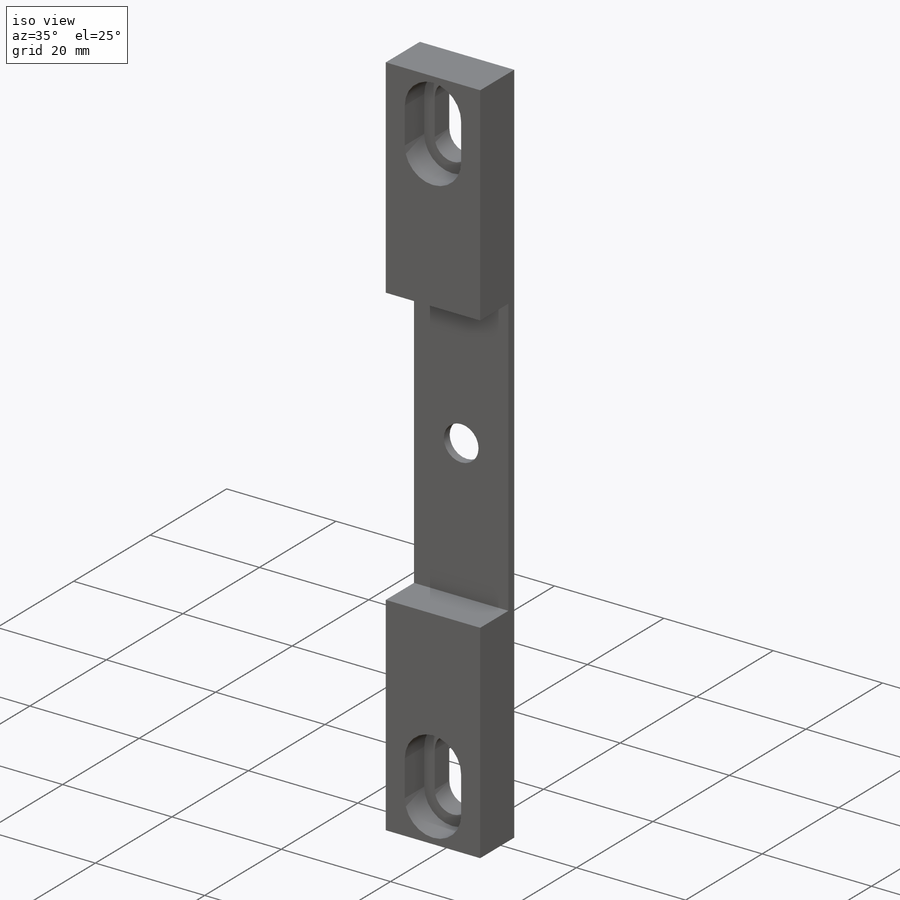
[diagram: iso view]
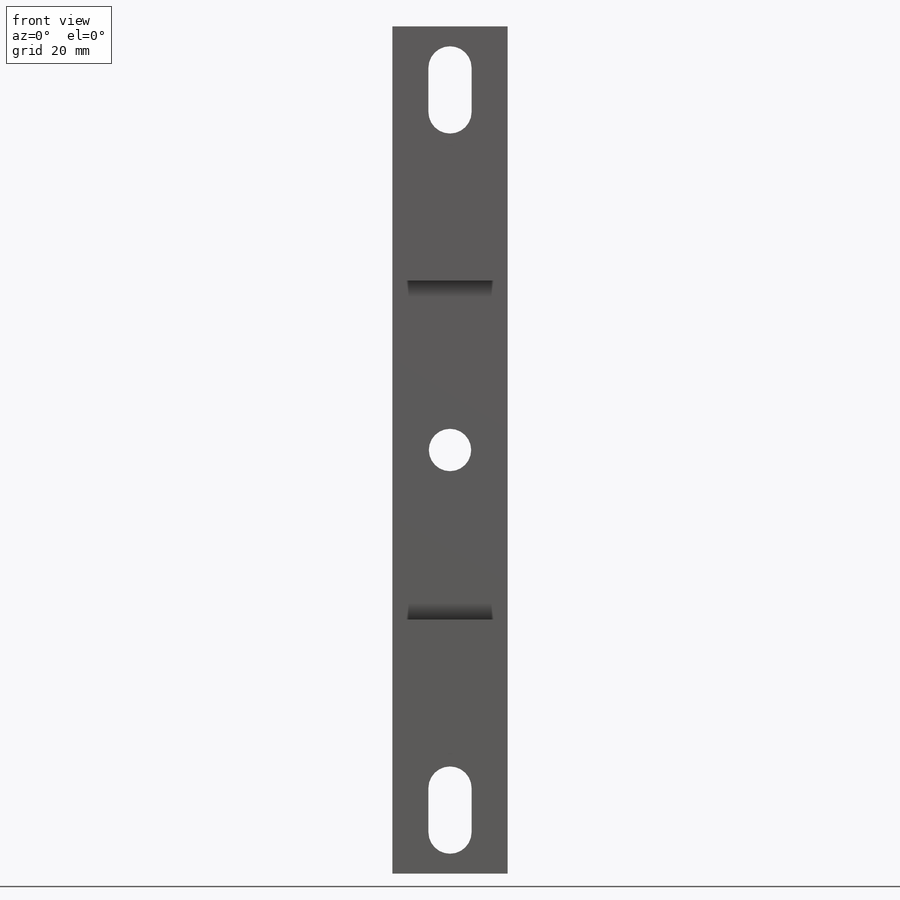
[diagram: front view]
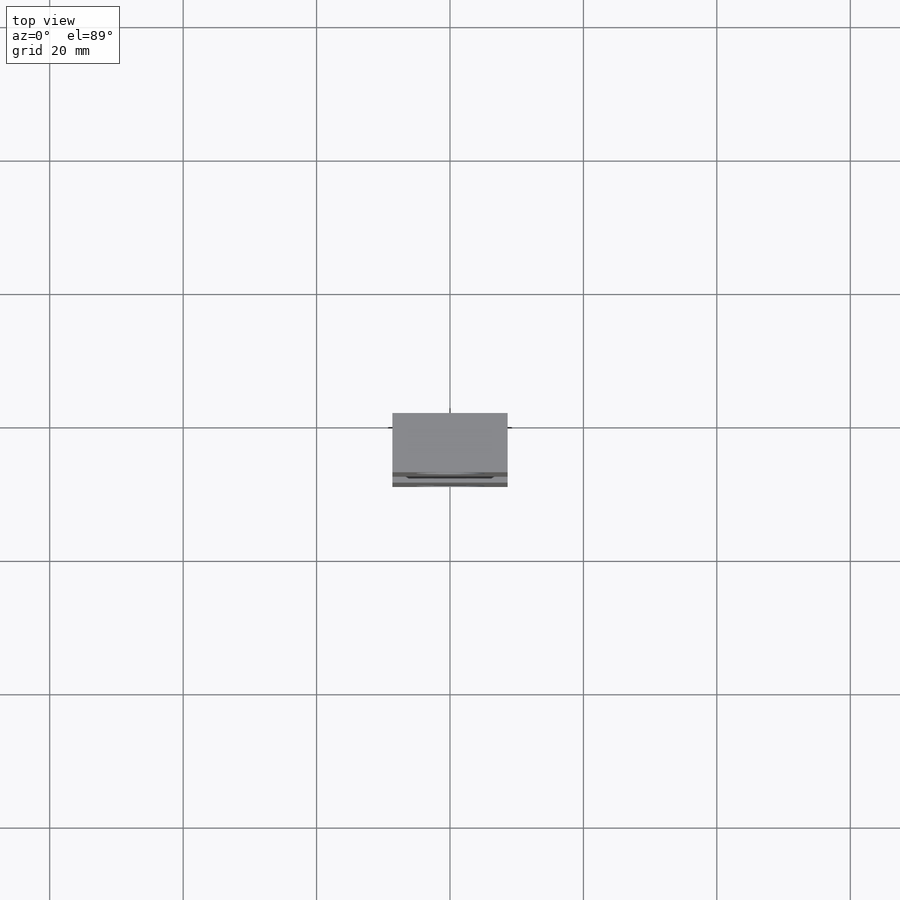
[diagram: top view]
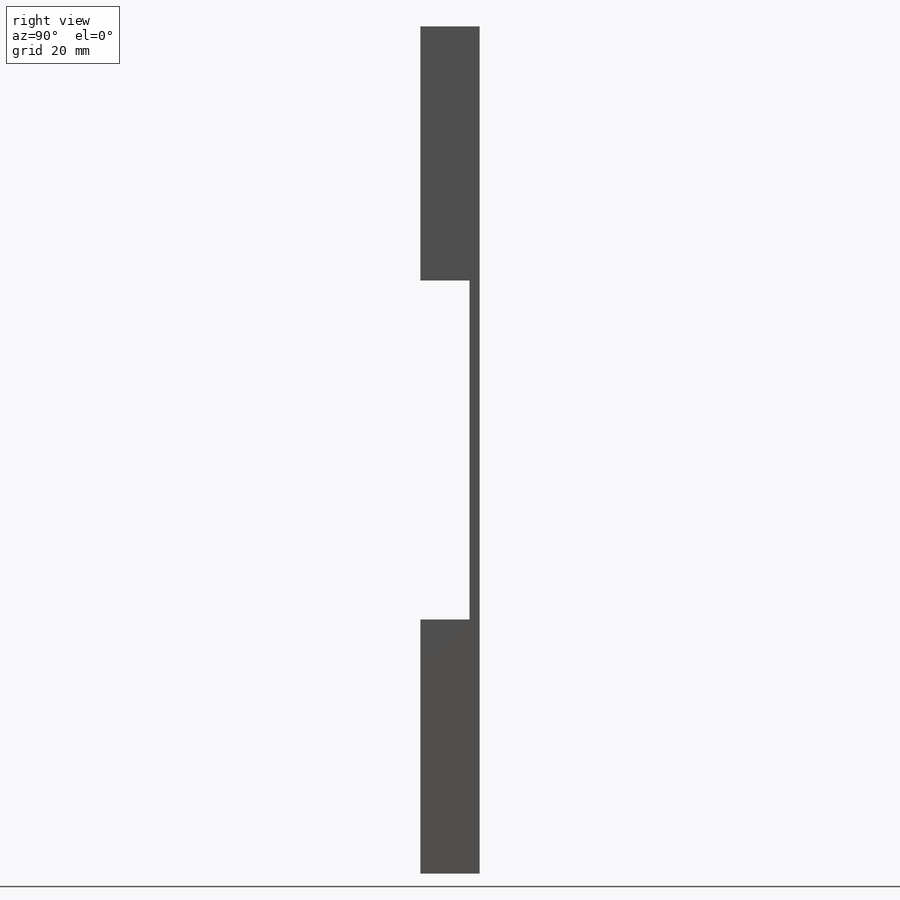
[diagram: right view]
SOLIDWORKS PART (.sldprt)
format: sldprt  version: not decoded by parser v0  size: 243,712 bytes
history: native  units: mm
features: sketch x7, cut_extrude x3, material x1, extrude x1, hole x1 (+11 scaffold rows collapsed)
feature tree (24):
  scaffold x11  (default folders/planes/origin — collapsed)
  material  "6061-T6 Al"
  sketch  "Sketch1"  dims[D1=63.5mm D2=127.0mm D3=12.446mm D4=17.272mm]
  extrude  "Boss-Extrude1"  Depth=8.89mm
  hole  "1/4 (0.25) Diameter Hole1"  Diameter=6.35mm Depth=8.89mm
  sketch  "Sketch3"
  sketch  "Sketch4"  dims[hole-wizard template sketch: 60 standard entries collapsed; hole parameters kept: c18.Thru Hole Depth=8.89mm]
  sketch  "Sketch5"  dims[D1=50.8mm D2=38.1mm]
  cut_extrude  "Cut-Extrude1"  Depth=7.366mm
  sketch  "Sketch13"  dims[c1.D1=114.3mm c1.D2=6.604mm c1.D3=6.477mm c1.D4=114.3mm c1.D5=3.175mm c2.D1=111.0869mm c2.D4=111.0869mm c2.D5=111.0869mm c2.D6=3.175mm c3.D5=3.175mm c3.D6=3.175mm c4.D5=3.175mm c4.D6=3.175mm c5.D5=3.175mm c5.D6=3.175mm c6.D5=3.175mm c6.D6=3.175mm c6.D1=107.95mm]
  sketch  "Sketch12"
  cut_extrude  "Cut-Extrude2"  [1 undecoded]
  sketch  "Sketch14"  dims[D1=~10.31875mm]
  cut_extrude  "Cut-Extrude3"  Depth=5.08mm
decode coverage: 9 of 12 modeling features carry decoded parameters
note: ~ marks probable driven/reference dimensions
note: 1 parameter value undecoded
note: suppression state not decoded; provenance and decode notes live in map.json
